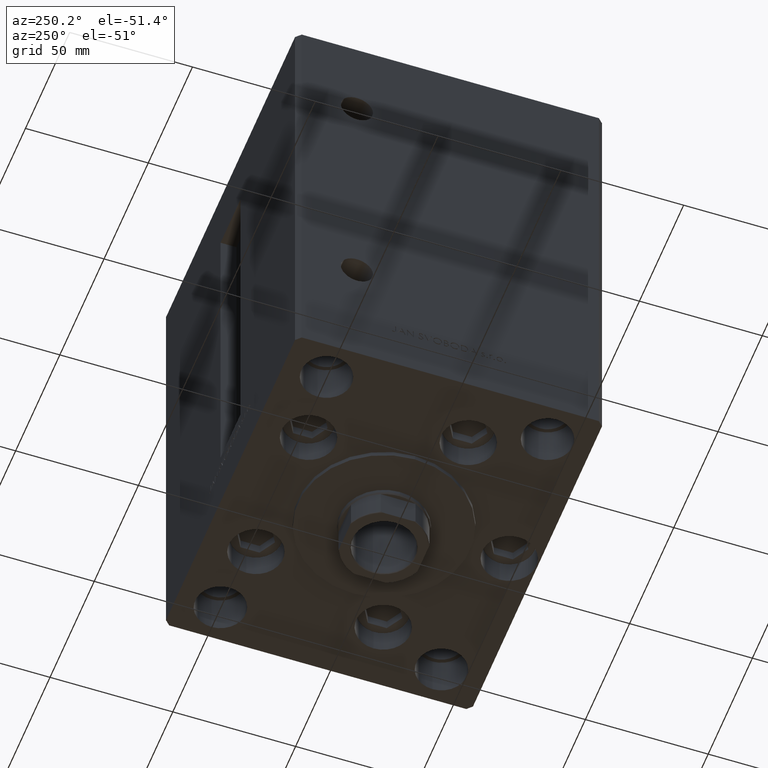
[diagram: clean part render]
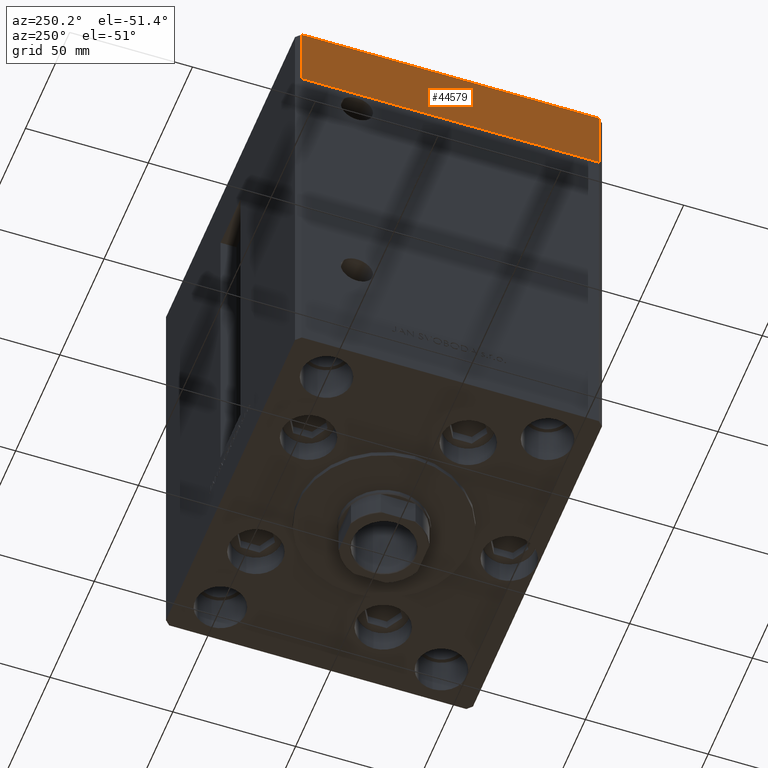
[diagram: same view with one face highlighted and labeled with its STEP entity id]
A machine part, auxiliary view. The second image highlights one B-rep face of the part: STEP entity #44579.
In plain terms, the highlighted planar face has unit normal (-1, 0, 0).
Its self-contained STEP definition (entity closure, byte-faithful):
#300 = FACE_OUTER_BOUND ( 'NONE', #18467, .T. ) ;
#1754 = CARTESIAN_POINT ( 'NONE',  ( -75.00000000000001421, 60.49999999999997158, -27.00000000000000000 ) ) ;
#2226 = DIRECTION ( 'NONE',  ( 0.000000000000000000, -1.000000000000000000, 0.000000000000000000 ) ) ;
#3624 = CARTESIAN_POINT ( 'NONE',  ( -75.00000000000001421, 60.49999999999997158, -27.00000000000000000 ) ) ;
#5249 = CARTESIAN_POINT ( 'NONE',  ( -75.00000000000001421, -60.50000000000001421, 0.000000000000000000 ) ) ;
#5335 = CARTESIAN_POINT ( 'NONE',  ( -75.00000000000001421, -60.50000000000001421, -27.00000000000000000 ) ) ;
#5376 = ORIENTED_EDGE ( 'NONE', *, *, #17576, .F. ) ;
#9239 = VERTEX_POINT ( 'NONE', #5249 ) ;
#9858 = CARTESIAN_POINT ( 'NONE',  ( -75.00000000000001421, 60.49999999999997158, 0.000000000000000000 ) ) ;
#10234 = VECTOR ( 'NONE', #24390, 1000.000000000000000 ) ;
#10608 = EDGE_CURVE ( 'NONE', #40291, #9239, #45249, .T. ) ;
#11486 = LINE ( 'NONE', #14807, #45982 ) ;
#14807 = CARTESIAN_POINT ( 'NONE',  ( -75.00000000000001421, 60.49999999999997158, -27.00000000000000000 ) ) ;
#17576 = EDGE_CURVE ( 'NONE', #40822, #9239, #25114, .T. ) ;
#18059 = VECTOR ( 'NONE', #32538, 1000.000000000000000 ) ;
#18467 = EDGE_LOOP ( 'NONE', ( #5376, #39425, #47380, #29359 ) ) ;
#18893 = DIRECTION ( 'NONE',  ( -1.000000000000000000, 0.000000000000000000, 0.000000000000000000 ) ) ;
#19633 = DIRECTION ( 'NONE',  ( 0.000000000000000000, 0.000000000000000000, 1.000000000000000000 ) ) ;
#22440 = DIRECTION ( 'NONE',  ( 0.000000000000000000, -1.000000000000000000, 0.000000000000000000 ) ) ;
#24390 = DIRECTION ( 'NONE',  ( 0.000000000000000000, 0.000000000000000000, 1.000000000000000000 ) ) ;
#25114 = LINE ( 'NONE', #9858, #36929 ) ;
#28755 = CARTESIAN_POINT ( 'NONE',  ( -75.00000000000001421, 60.49999999999997158, -27.00000000000000000 ) ) ;
#29359 = ORIENTED_EDGE ( 'NONE', *, *, #10608, .T. ) ;
#32538 = DIRECTION ( 'NONE',  ( 0.000000000000000000, 0.000000000000000000, 1.000000000000000000 ) ) ;
#35833 = LINE ( 'NONE', #1754, #10234 ) ;
#36929 = VECTOR ( 'NONE', #2226, 1000.000000000000000 ) ;
#38719 = PLANE ( 'NONE',  #44263 ) ;
#39425 = ORIENTED_EDGE ( 'NONE', *, *, #49910, .F. ) ;
#40291 = VERTEX_POINT ( 'NONE', #41804 ) ;
#40822 = VERTEX_POINT ( 'NONE', #48545 ) ;
#41804 = CARTESIAN_POINT ( 'NONE',  ( -75.00000000000001421, -60.50000000000001421, -27.00000000000000000 ) ) ;
#42855 = EDGE_CURVE ( 'NONE', #46652, #40291, #11486, .T. ) ;
#44263 = AXIS2_PLACEMENT_3D ( 'NONE', #3624, #18893, #19633 ) ;
#44579 = ADVANCED_FACE ( 'NONE', ( #300 ), #38719, .T. ) ;
#45249 = LINE ( 'NONE', #5335, #18059 ) ;
#45982 = VECTOR ( 'NONE', #22440, 1000.000000000000000 ) ;
#46652 = VERTEX_POINT ( 'NONE', #28755 ) ;
#47380 = ORIENTED_EDGE ( 'NONE', *, *, #42855, .T. ) ;
#48545 = CARTESIAN_POINT ( 'NONE',  ( -75.00000000000001421, 60.49999999999997158, 0.000000000000000000 ) ) ;
#49910 = EDGE_CURVE ( 'NONE', #46652, #40822, #35833, .T. ) ;